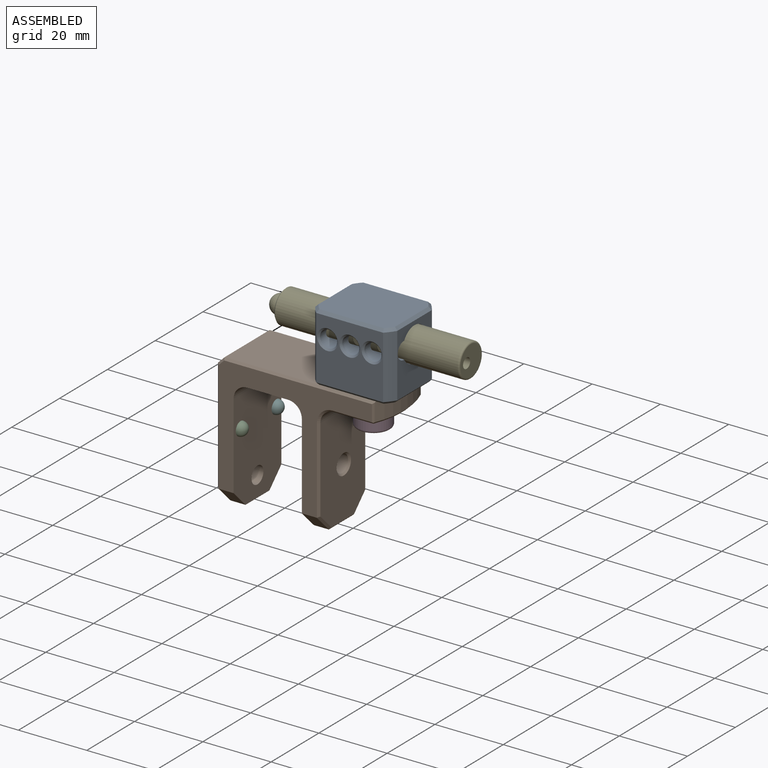
[diagram: assembled view]
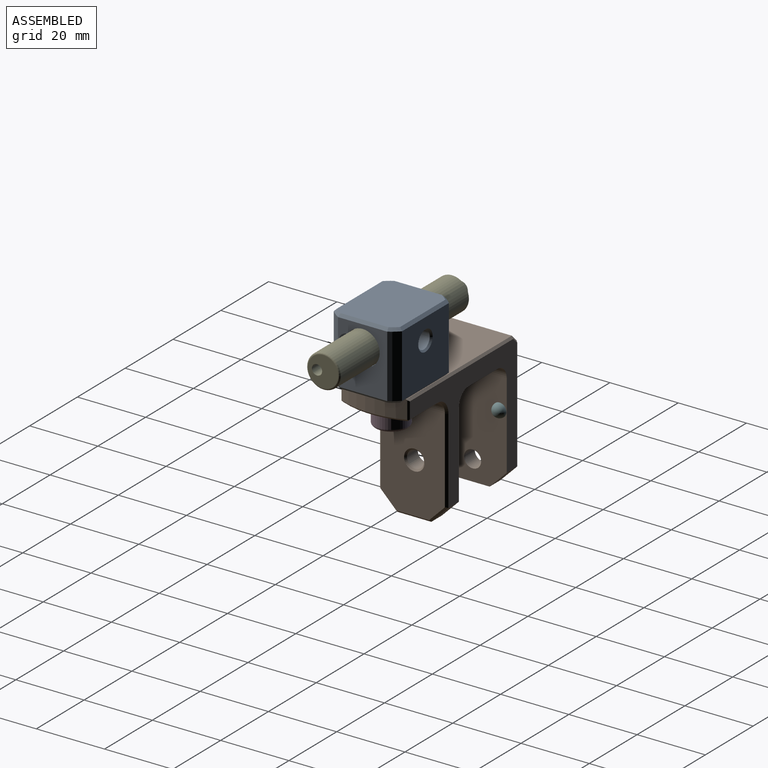
[diagram: assembled view, second angle]
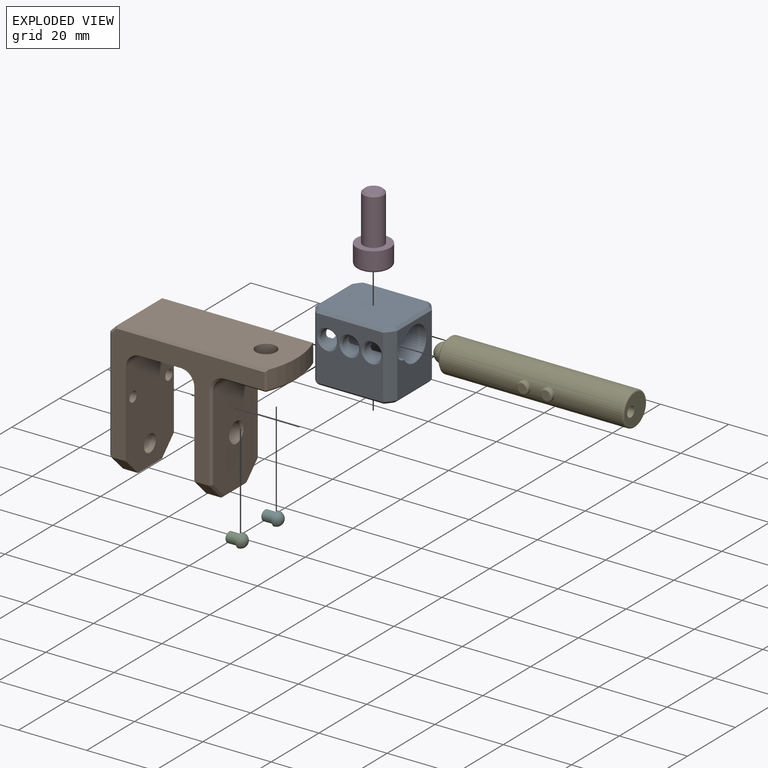
[diagram: exploded view]
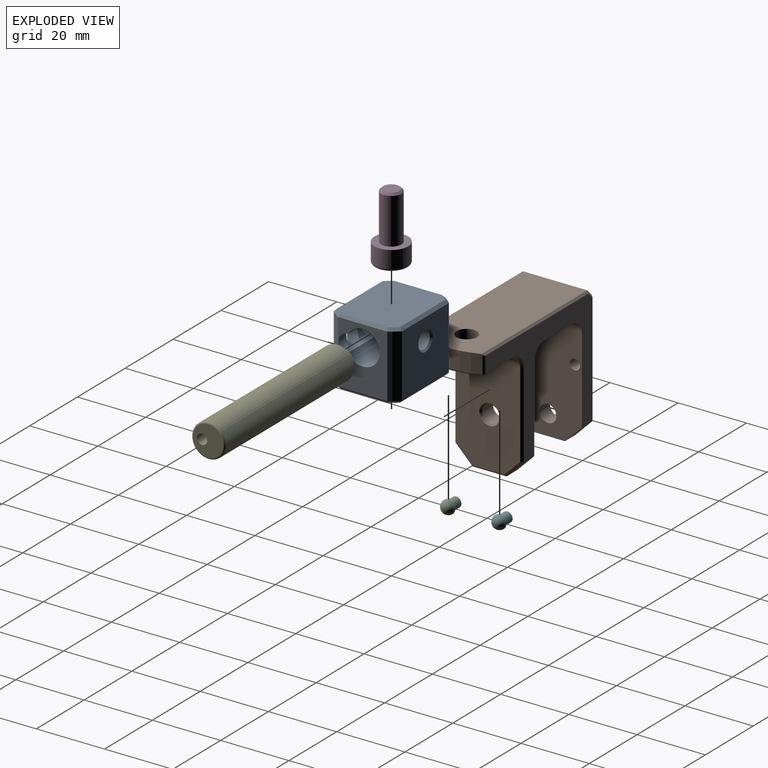
[diagram: exploded view, second angle]
ASSEMBLY  parts=6 mates=5
PART A: 47 faces, bbox 24x20x20 mm
  f0: cylinder r=5mm len=24mm, axis (-1,0,0), area 588.1mm2, adj f1,f2,f3,f4,f11,f12,f15,f19
  f1: cylinder r=2.5mm len=6.5mm, axis (-1,0,0), area 28.2mm2, adj f0,f17,f19,f20,f25,f27,f28
  f2: cylinder r=2.5mm len=5.5mm, axis (-1,0,0), area 32.5mm2, adj f0,f11,f25,f27,f28
  f3: cylinder r=2.5mm len=5.5mm, axis (-1,0,0), area 32.5mm2, adj f0,f12,f21,f23,f24
  f4: cylinder r=2.5mm len=6.5mm, axis (-1,0,0), area 28.2mm2, adj f0,f17,f19,f20,f21,f23,f24
  f5: cylinder r=14mm len=18.4mm, axis (0,0,1), area 65.6mm2, adj f12,f13,f34,f39
  f6: cylinder r=14mm len=18.4mm, axis (0,0,1), area 65.6mm2, adj f11,f14,f35,f46
  f7: cylinder r=14mm len=18.4mm, axis (0,0,1), area 65.6mm2, adj f12,f14,f38,f42
  f8: cylinder r=14mm len=18.4mm, axis (0,0,1), area 65.6mm2, adj f11,f13,f31,f43
  f9: plane 22.4x18.4mm, normal (0,0,-1), area 376.8mm2, adj f30,f31,f32,f33,f34,f35,f36,f37
  f10: plane 22.4x18.4mm, normal (0,0,1), area 405mm2, adj f39,f40,f41,f42,f43,f44,f45,f46
  f11: plane 18.4x14.42mm, normal (1,0,0), area 178.4mm2, adj f0,f2,f6,f8,f33,f45
  f12: plane 18.4x14.42mm, normal (-1,0,0), area 178.4mm2, adj f0,f3,f5,f7,f36,f40
  f13: plane 19.6x18.4mm, normal (0,1,0), area 332.3mm2, adj f5,f8,f16,f32,f41
  f14: plane 19.6x18.4mm, normal (0,-1,0), area 275.7mm2, adj f6,f7,f18,f22,f26,f37,f44
  f15: cylinder r=2.5mm len=5.17mm, axis (0,1,0), area 81.2mm2, adj f0,f16
  f16: cone r=2.5mm half-angle=45deg, axis (0,1,0), area 12.2mm2, adj f13,f15
  f17: cylinder r=2.5mm len=5mm, axis (0,-1,0), area 78.5mm2, adj f1,f4,f18
  f18: cone r=2.5mm half-angle=45deg, axis (0,-1,0), area 12.2mm2, adj f14,f17
  f19: cylinder r=2.5mm len=0.33mm, axis (0,-1,0), area 0mm2, adj f0,f1,f4
  f20: cylinder r=2.5mm len=0.33mm, axis (0,-1,0), area 0mm2, adj f0,f1,f4
  f21: cylinder r=2.5mm len=5mm, axis (0,-1,0), area 78.5mm2, adj f3,f4,f22
  f22: cone r=2.5mm half-angle=45deg, axis (0,-1,0), area 12.2mm2, adj f14,f21
  f23: cylinder r=2.5mm len=0.33mm, axis (0,-1,0), area 0mm2, adj f0,f3,f4
  f24: cylinder r=2.5mm len=0.33mm, axis (0,-1,0), area 0mm2, adj f0,f3,f4
  f25: cylinder r=2.5mm len=5mm, axis (0,-1,0), area 78.5mm2, adj f1,f2,f26
  f26: cone r=2.5mm half-angle=45deg, axis (0,-1,0), area 12.2mm2, adj f14,f25
  f27: cylinder r=2.5mm len=0.33mm, axis (0,-1,0), area 0mm2, adj f0,f1,f2
  f28: cylinder r=2.5mm len=0.33mm, axis (0,-1,0), area 0mm2, adj f0,f1,f2
  f29: cylinder r=2.5mm len=7.5mm, axis (0,0,-1), area 117.8mm2, adj f0,f30
  f30: cone r=2.5mm half-angle=45deg, axis (0,0,-1), area 12.2mm2, adj f9,f29
  f31: cone r=14mm half-angle=45deg, axis (0,0,1), area 3.6mm2, adj f8,f9,f32,f33
  f32: plane 19.6x0.81mm, normal (0,0.71,-0.71), area 21.8mm2, adj f9,f13,f31,f34
  f33: plane 14.43x0.81mm, normal (0.71,0,-0.71), area 16.1mm2, adj f9,f11,f31,f35
  f34: cone r=14mm half-angle=45deg, axis (0,0,1), area 3.6mm2, adj f5,f9,f32,f36
  f35: cone r=14mm half-angle=45deg, axis (0,0,1), area 3.6mm2, adj f6,f9,f33,f37
  f36: plane 14.43x0.81mm, normal (-0.71,0,-0.71), area 16.1mm2, adj f9,f12,f34,f38
  f37: plane 19.6x0.81mm, normal (0,-0.71,-0.71), area 21.8mm2, adj f9,f14,f35,f38
  f38: cone r=14mm half-angle=45deg, axis (0,0,1), area 3.6mm2, adj f7,f9,f36,f37
  f39: cone r=13.2mm half-angle=45deg, axis (0,0,-1), area 3.6mm2, adj f5,f10,f40,f41
  f40: plane 14.43x0.81mm, normal (-0.71,0,0.71), area 16.1mm2, adj f10,f12,f39,f42
  f41: plane 19.6x0.81mm, normal (0,0.71,0.71), area 21.8mm2, adj f10,f13,f39,f43
  f42: cone r=13.2mm half-angle=45deg, axis (0,0,-1), area 3.6mm2, adj f7,f10,f40,f44
  f43: cone r=13.2mm half-angle=45deg, axis (0,0,-1), area 3.6mm2, adj f8,f10,f41,f45
  f44: plane 19.6x0.81mm, normal (0,-0.71,0.71), area 21.8mm2, adj f10,f14,f42,f46
  f45: plane 14.43x0.81mm, normal (0.71,0,0.71), area 16.1mm2, adj f10,f11,f43,f46
  f46: cone r=13.2mm half-angle=45deg, axis (0,0,-1), area 3.6mm2, adj f6,f10,f44,f45
PART B: 51 faces, bbox 48x20x40 mm
  f0: plane 44.93x34.4mm, normal (0,-1,0), area 498.2mm2, adj f2,f7,f9,f11,f13,f26,f27,f29
  f1: plane 18.8x13.41mm, normal (0,0,-1), area 207.3mm2, adj f12,f23,f31,f34,f49
  f2: plane 20x12mm, normal (0,0,-1), area 240mm2, adj f0,f4,f11,f13
  f3: plane 37.4x18.8mm, normal (-1,0,0), area 634.3mm2, adj f15,f17,f19,f28,f38,f39,f41,f43
  f4: plane 44.93x34.4mm, normal (0,1,0), area 498.2mm2, adj f2,f7,f9,f11,f13,f24,f25,f34
  f5: plane 46.01x18.8mm, normal (0,0,1), area 825.4mm2, adj f22,f28,f42,f45,f47
  f6: plane 29.4x18.8mm, normal (1,0,0), area 502.8mm2, adj f12,f21,f30,f32,f33,f35,f37
  f7: plane 30x20mm, normal (-1,0,0), area 555.4mm2, adj f0,f4,f8,f13,f20,f24,f27
  f8: plane 10x4.4mm, normal (0,0,-1), area 44mm2, adj f7,f24,f27,f33
  f9: plane 30x20mm, normal (1,0,0), area 541.2mm2, adj f0,f4,f10,f11,f14,f16,f18,f25
  f10: plane 10x4.4mm, normal (0,0,-1), area 44mm2, adj f9,f25,f26,f41
  f11: cylinder r=4mm len=20mm, axis (0,1,0), area 125.7mm2, adj f0,f2,f4,f9
  f12: cylinder r=4mm len=18.8mm, axis (0,1,0), area 118.1mm2, adj f1,f6,f29,f36
  f13: cylinder r=4mm len=20mm, axis (0,-1,0), area 125.7mm2, adj f0,f2,f4,f7
  f14: cylinder r=1.5mm len=4.75mm, axis (-1,0,0), area 44.8mm2, adj f9,f15
  f15: cone r=1.5mm half-angle=45deg, axis (-1,0,0), area 3.4mm2, adj f3,f14,f44
  f16: cylinder r=1.5mm len=4.75mm, axis (-1,0,0), area 44.8mm2, adj f9,f17
  f17: cone r=1.5mm half-angle=45deg, axis (-1,0,0), area 3.6mm2, adj f3,f16
  f18: cylinder r=2.5mm len=5mm, axis (-1,0,0), area 70.7mm2, adj f9,f19
  f19: cone r=2.5mm half-angle=45deg, axis (-1,0,0), area 12.2mm2, adj f3,f18
  f20: cylinder r=2.5mm len=5mm, axis (1,0,0), area 70.7mm2, adj f7,f21
  f21: cone r=2.5mm half-angle=45deg, axis (1,0,0), area 12.2mm2, adj f6,f20
  f22: cylinder r=3mm len=6mm, axis (0,0,-1), area 108.4mm2, adj f5,f23
  f23: cone r=3mm half-angle=45deg, axis (0,0,-1), area 6.9mm2, adj f1,f22
  f24: plane 5x5mm, normal (0,0.71,-0.71), area 31.1mm2, adj f4,f7,f8,f35
  f25: plane 5x5mm, normal (0,0.71,-0.71), area 31.1mm2, adj f4,f9,f10,f43
  f26: plane 5x5mm, normal (0,-0.71,-0.71), area 31.1mm2, adj f0,f9,f10,f39
  f27: plane 5x5mm, normal (0,-0.71,-0.71), area 31.1mm2, adj f0,f7,f8,f32
  f28: plane 18.8x2mm, normal (-0.71,0,0.71), area 53.2mm2, adj f3,f5,f40,f46
  f29: cone r=4.6mm half-angle=45deg, axis (0,-1,0), area 5.7mm2, adj f0,f12,f30,f31
  f30: plane 25x0.6mm, normal (0.71,-0.71,0), area 21.1mm2, adj f0,f6,f29,f32
  f31: plane 11.81x0.6mm, normal (0,-0.71,-0.71), area 9.9mm2, adj f0,f1,f29,f48,f49
  f32: plane 5.25x5.25mm, normal (0.71,-0.5,-0.5), area 5.8mm2, adj f6,f27,f30,f33
  f33: plane 10x0.6mm, normal (0.71,0,-0.71), area 8.3mm2, adj f6,f8,f32,f35
  f34: plane 11.81x0.6mm, normal (0,0.71,-0.71), area 9.9mm2, adj f1,f4,f36,f49,f50
  f35: plane 5.25x5.25mm, normal (0.71,0.5,-0.5), area 5.8mm2, adj f6,f24,f33,f37
  f36: cone r=4.6mm half-angle=45deg, axis (0,1,0), area 5.7mm2, adj f4,f12,f34,f37
  f37: plane 25x0.6mm, normal (0.71,0.71,0), area 21.1mm2, adj f4,f6,f35,f36
  f38: plane 33x0.6mm, normal (-0.71,-0.71,0), area 27.8mm2, adj f0,f3,f39,f40
  f39: plane 5.25x5.25mm, normal (-0.71,-0.5,-0.5), area 5.8mm2, adj f3,f26,f38,f41
  f40: plane 2.25x2.25mm, normal (-0.5,-0.71,0.5), area 2.2mm2, adj f0,f28,f38,f42
  f41: plane 10x0.6mm, normal (-0.71,0,-0.71), area 8.3mm2, adj f3,f10,f39,f43
  f42: plane 44.18x0.6mm, normal (0,-0.71,0.71), area 37.2mm2, adj f0,f5,f40,f47,f48
  f43: plane 5.25x5.25mm, normal (-0.71,0.5,-0.5), area 5.8mm2, adj f3,f25,f41,f44
  f44: plane 33x0.6mm, normal (-0.71,0.71,0), area 27.6mm2, adj f3,f4,f15,f43,f46
  f45: plane 44.18x0.6mm, normal (0,0.71,0.71), area 37.2mm2, adj f4,f5,f46,f47,f50
  f46: plane 2.25x2.25mm, normal (-0.5,0.71,0.5), area 2.2mm2, adj f4,f28,f44,f45
  f47: cylinder r=25.05mm len=19.26mm, axis (0,0,1), area 106.7mm2, adj f5,f42,f45,f48,f49,f50
  f48: plane 5.35x0.56mm, normal (0.55,-0.83,0), area 3.4mm2, adj f0,f31,f42,f47,f49
  f49: cone r=25.05mm half-angle=45deg, axis (0,0,1), area 16.8mm2, adj f1,f31,f34,f47,f48,f50
  f50: plane 5.35x0.56mm, normal (0.55,0.83,0), area 3.4mm2, adj f4,f34,f45,f47,f49
PART C: 5 faces, bbox 5.5x4x4 mm
  f0: plane 2.6x2.6mm, normal (1,0,0), area 5.3mm2, adj f4
  f1: sphere r=2mm, area 25.1mm2, adj f2
  f2: plane 4x4mm, normal (1,0,0), area 5.5mm2, adj f1,f3
  f3: cylinder r=1.5mm len=3.3mm, axis (-1,0,0), area 31.1mm2, adj f2,f4
  f4: cone r=1.3mm half-angle=45deg, axis (-1,0,0), area 2.5mm2, adj f0,f3
PART D: 16 faces, bbox 19.8x10.7x10.7 mm
  f0: cylinder r=3mm len=13.4mm, axis (1,0,0), area 252.6mm2, adj f6,f15
  f1: cone r=2.5mm half-angle=60deg, axis (1,0,0), area 8.9mm2, adj f3,f7,f8,f9,f10,f11,f12
  f2: plane 4.8x4.8mm, normal (-1,0,0), area 18.1mm2, adj f15
  f3: plane 8.3x8.3mm, normal (1,0,0), area 23.9mm2, adj f1,f4
  f4: torus R=4.15mm, axis (1,0,0), area 36.8mm2, adj f3,f5
  f5: cylinder r=4.95mm len=9.9mm, axis (1,0,0), area 155.5mm2, adj f4,f6
  f6: plane 9.9x9.9mm, normal (-1,0,0), area 48.7mm2, adj f0,f5
  f7: plane 3.21x2.55mm, normal (0,-0.5,-0.87), area 9mm2, adj f1,f8,f12,f13
  f8: plane 3.21x2.55mm, normal (0,0.5,-0.87), area 9mm2, adj f1,f7,f9,f13
  f9: plane 3.21x2.95mm, normal (0,1,0), area 9mm2, adj f1,f8,f10,f13
  f10: plane 3.21x2.55mm, normal (0,0.5,0.87), area 9mm2, adj f1,f9,f11,f13
  f11: plane 3.21x2.55mm, normal (0,-0.5,0.87), area 9mm2, adj f1,f10,f12,f13
  f12: plane 3.21x2.95mm, normal (0,-1,0), area 9mm2, adj f1,f7,f11,f13
  f13: plane 5.89x5.1mm, normal (1,0,0), area 2.9mm2, adj f7,f8,f9,f10,f11,f12,f14
  f14: cone r=0mm half-angle=59deg, axis (1,0,0), area 22.9mm2, adj f13
  f15: cone r=3mm half-angle=45deg, axis (1,0,0), area 14.4mm2, adj f0,f2
PART E: 15 faces, bbox 10.6x58.5x11.3 mm
  f0: cylinder r=4.9mm len=53.5mm, axis (0,-1,0), area 1627.6mm2, adj f3,f4,f7,f9
  f1: plane 8.8x8.8mm, normal (0,1,0), area 53.8mm2, adj f3,f13
  f2: plane 8.8x8.8mm, normal (0,-1,0), area 36.2mm2, adj f4,f5
  f3: torus R=4.4mm, axis (0,-1,0), area 23.3mm2, adj f0,f1
  f4: cone r=4.4mm half-angle=45deg, axis (0,1,0), area 20.7mm2, adj f0,f2
  f5: cylinder r=2.8mm len=5.6mm, axis (0,1,0), area 21.1mm2, adj f2,f6
  f6: sphere r=2.8mm, area 49.3mm2, adj f5
  f7: cylinder r=1.75mm len=3.5mm, axis (0,0,-1), area 8.4mm2, adj f0,f12
  f8: plane 2.5x2.5mm, normal (0,0,1), area 4.9mm2, adj f12
  f9: cylinder r=1.75mm len=3.5mm, axis (0,0,-1), area 8.4mm2, adj f0,f11
  f10: plane 2.5x2.5mm, normal (0,0,1), area 4.9mm2, adj f11
  f11: torus R=1.25mm, axis (0,0,1), area 7.7mm2, adj f9,f10
  f12: torus R=1.25mm, axis (0,0,1), area 7.7mm2, adj f7,f8
  f13: cylinder r=1.5mm len=5mm, axis (0,1,0), area 47.1mm2, adj f1,f14
  f14: plane 3x3mm, normal (0,1,0), area 7.1mm2, adj f13
PART F: same geometry as C
PLACE A at identity fixed
PLACE B t=(0,0,5)mm
PLACE C rot(axis=(0,1,0),180deg) t=(-16.51,-7.08,-94.14)mm
PLACE D rot(axis=(0,1,0),90deg) t=(34.79,0,-50.22)mm
PLACE E rot(axis=(0.58,0.58,-0.58),120deg) t=(-25.97,0,-7)mm
PLACE F rot(axis=(0,1,0),180deg) t=(-16.51,7.92,-94.08)mm
MATE revolute B.f22 <-> A.f29  axis (0,0,1) through (0,0,-20)mm
MATE fastened D.f0 <-> B.f22  axis (0,0,-1) through (0,0,-26)mm
MATE slider E.f0 <-> A.f0  axis (-1,0,0) through (1.28,0,-7)mm
MATE fastened F.f3 <-> B.f14  axis (-1,0,0) through (-34,7.92,-38.94)mm
MATE fastened C.f3 <-> B.f16  axis (-1,0,0) through (-34,-7.08,-39)mm
